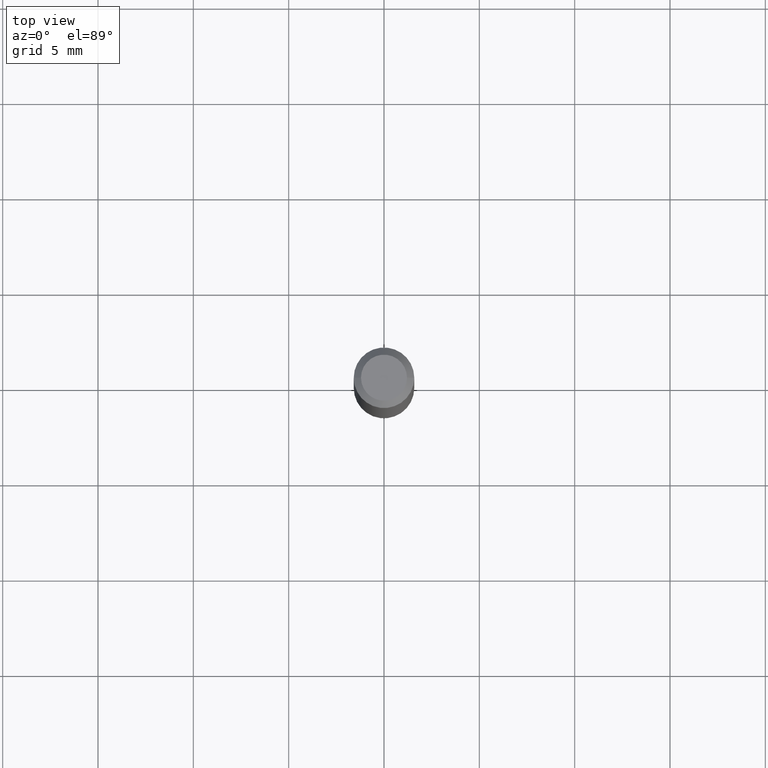
[diagram: clean part render]
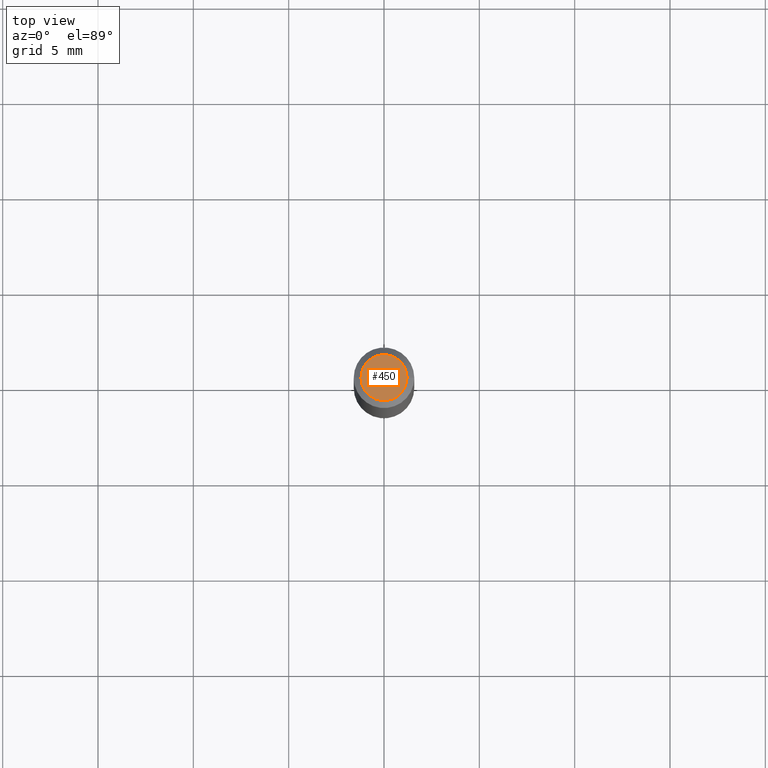
[diagram: same view with one face highlighted and labeled with its STEP entity id]
A machine part, top view. The second image highlights one B-rep face of the part: STEP entity #450.
In plain terms, the highlighted planar face has unit normal (0, -0, -1).
Its self-contained STEP definition (entity closure, byte-faithful):
#1 = FACE_OUTER_BOUND ( 'NONE', #189, .T. ) ;
#6 = AXIS2_PLACEMENT_3D ( 'NONE', #353, #464, #138 ) ;
#72 = CIRCLE ( 'NONE', #6, 0.04749999999999999362 ) ;
#103 = CARTESIAN_POINT ( 'NONE',  ( 3.316907271900976096E-16, 0.04749999999999999362, -5.911810482194846144E-16 ) ) ;
#138 = DIRECTION ( 'NONE',  ( 1.000000000000000000, -6.982962677686267499E-15, 4.852736867747366768E-29 ) ) ;
#182 = VERTEX_POINT ( 'NONE', #243 ) ;
#189 = EDGE_LOOP ( 'NONE', ( #338, #233 ) ) ;
#201 = EDGE_CURVE ( 'NONE', #182, #263, #375, .T. ) ;
#233 = ORIENTED_EDGE ( 'NONE', *, *, #466, .T. ) ;
#243 = CARTESIAN_POINT ( 'NONE',  ( -0.04749999999999999362, 3.578768372314195715E-16, -8.506713692488727040E-16 ) ) ;
#263 = VERTEX_POINT ( 'NONE', #459 ) ;
#288 = DIRECTION ( 'NONE',  ( 2.438088387897960049E-29, -3.491481338843145188E-15, -1.000000000000000000 ) ) ;
#315 = DIRECTION ( 'NONE',  ( 1.000000000000000000, -6.982962677686267499E-15, 4.852736867747366768E-29 ) ) ;
#338 = ORIENTED_EDGE ( 'NONE', *, *, #201, .T. ) ;
#353 = CARTESIAN_POINT ( 'NONE',  ( 2.080290297812910479E-44, -2.970103211220577886E-30, -8.506713692488703374E-16 ) ) ;
#354 = PLANE ( 'NONE',  #437 ) ;
#375 = CIRCLE ( 'NONE', #413, 0.04749999999999999362 ) ;
#394 = DIRECTION ( 'NONE',  ( -2.445468806185136597E-29, 3.491481338843145583E-15, 1.000000000000000000 ) ) ;
#413 = AXIS2_PLACEMENT_3D ( 'NONE', #465, #394, #315 ) ;
#429 = DIRECTION ( 'NONE',  ( -1.000000000000000000, 6.982962677686265922E-15, -4.876176775795935793E-29 ) ) ;
#437 = AXIS2_PLACEMENT_3D ( 'NONE', #103, #288, #429 ) ;
#450 = ADVANCED_FACE ( 'NONE', ( #1 ), #354, .F. ) ;
#459 = CARTESIAN_POINT ( 'NONE',  ( 0.04749999999999999362, -4.035134999187593414E-16, -8.506713692488677736E-16 ) ) ;
#464 = DIRECTION ( 'NONE',  ( -2.445468806185136597E-29, 3.491481338843145583E-15, 1.000000000000000000 ) ) ;
#465 = CARTESIAN_POINT ( 'NONE',  ( 2.080290297812910479E-44, -2.970103211220577886E-30, -8.506713692488703374E-16 ) ) ;
#466 = EDGE_CURVE ( 'NONE', #263, #182, #72, .T. ) ;